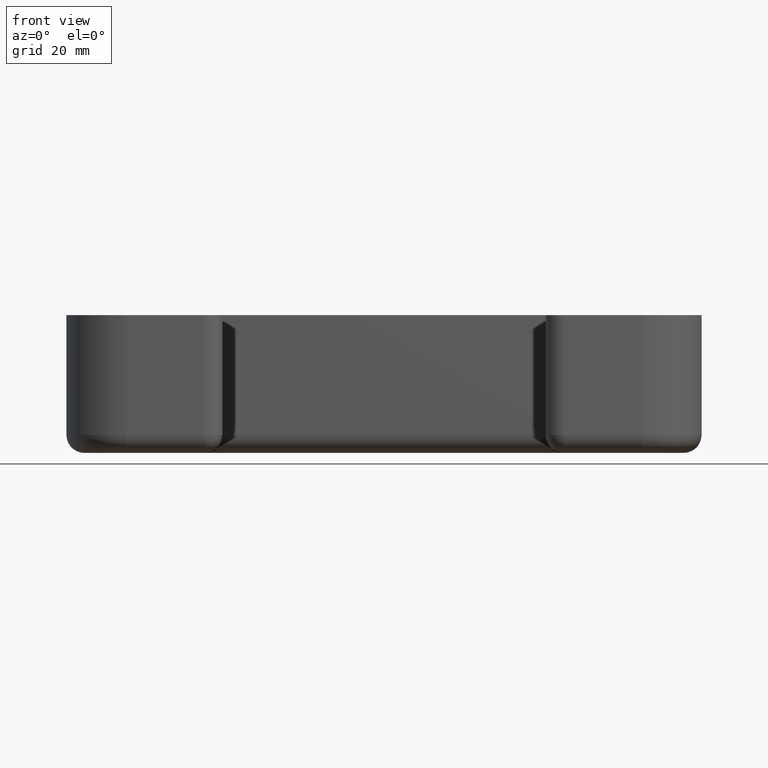
[diagram: clean part render]
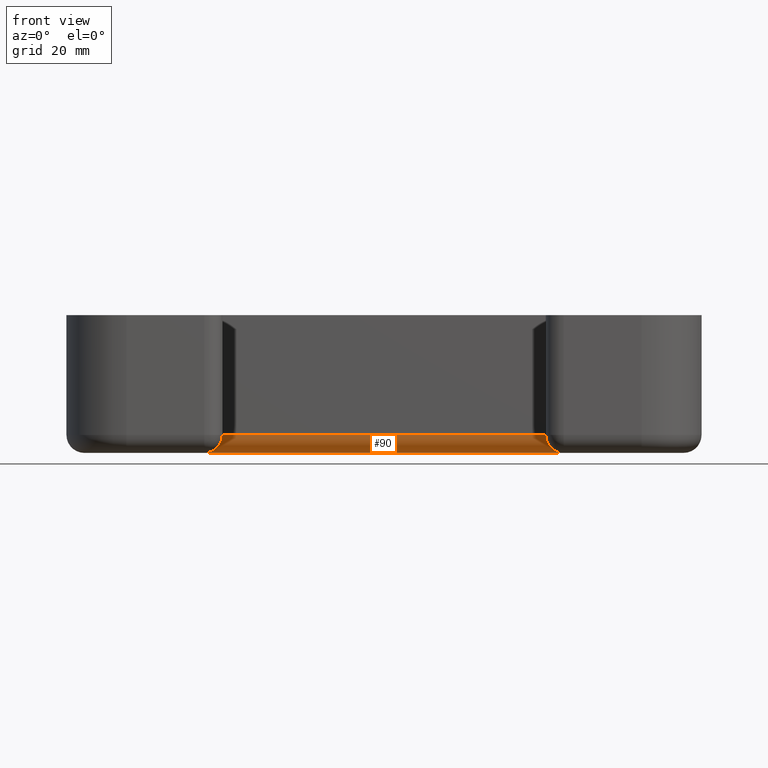
[diagram: same view with one face highlighted and labeled with its STEP entity id]
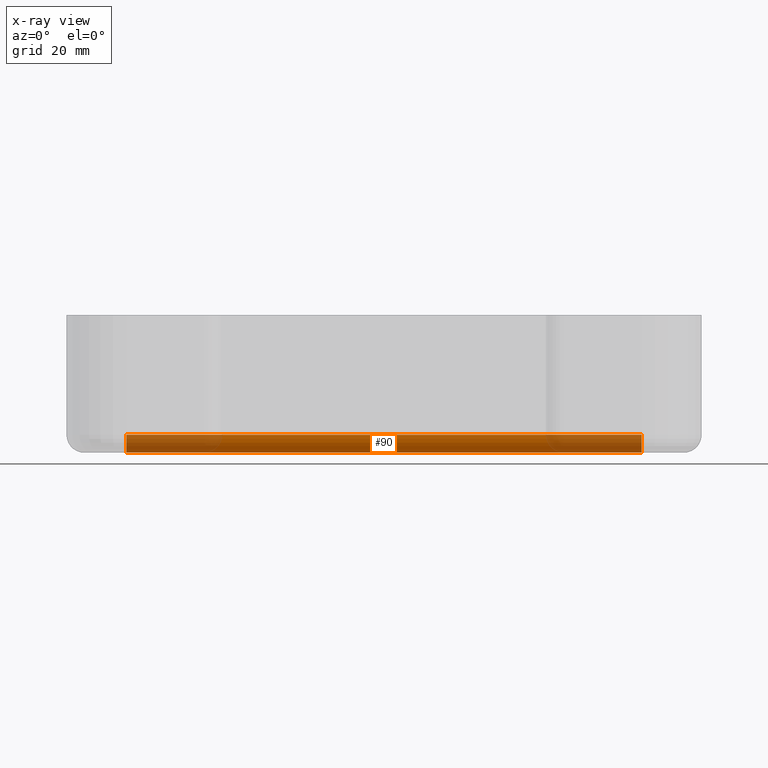
[diagram: x-ray of the same camera — body ghosted, the highlighted face saturated]
A machine part, front view. The second image highlights one B-rep face of the part: STEP entity #90.
The next image is the same camera in x-ray: the body ghosted, the highlighted face saturated — about 36% of this face is hidden behind the body in this view.
In plain terms, the highlighted cylindrical surface (edge-blend (fillet) strip) has radius 3 mm, axis along (1, 0, 0).
Its self-contained STEP definition (entity closure, byte-faithful):
#90 = ADVANCED_FACE( '', ( #178 ), #179, .T. );
#178 = FACE_OUTER_BOUND( '', #321, .T. );
#179 = CYLINDRICAL_SURFACE( '', #322, 3.00000000000000 );
#321 = EDGE_LOOP( '', ( #593, #594, #595, #596 ) );
#322 = AXIS2_PLACEMENT_3D( '', #597, #598, #599 );
#593 = ORIENTED_EDGE( '', *, *, #1091, .T. );
#594 = ORIENTED_EDGE( '', *, *, #1092, .F. );
#595 = ORIENTED_EDGE( '', *, *, #1087, .F. );
#596 = ORIENTED_EDGE( '', *, *, #1093, .F. );
#597 = CARTESIAN_POINT( '', ( -43.0000000000000, 21.8000000000002, -20.0000000000000 ) );
#598 = DIRECTION( '', ( 1.00000000000000, 0.000000000000000, 0.000000000000000 ) );
#599 = DIRECTION( '', ( 0.000000000000000, 0.000000000000000, 1.00000000000000 ) );
#1087 = EDGE_CURVE( '', #1338, #1339, #1340, .T. );
#1091 = EDGE_CURVE( '', #1345, #1346, #1347, .T. );
#1092 = EDGE_CURVE( '', #1339, #1346, #1348, .F. );
#1093 = EDGE_CURVE( '', #1345, #1338, #1349, .T. );
#1338 = VERTEX_POINT( '', #1673 );
#1339 = VERTEX_POINT( '', #1674 );
#1340 = CIRCLE( '', #1675, 3.00000000000000 );
#1345 = VERTEX_POINT( '', #1680 );
#1346 = VERTEX_POINT( '', #1681 );
#1347 = CIRCLE( '', #1682, 3.00000000000000 );
#1348 = LINE( '', #1683, #1684 );
#1349 = LINE( '', #1685, #1686 );
#1673 = CARTESIAN_POINT( '', ( -43.0000000000003, 21.8000000000002, -23.0000000000000 ) );
#1674 = CARTESIAN_POINT( '', ( -43.0000000000003, 18.8000000000002, -20.0000000000000 ) );
#1675 = AXIS2_PLACEMENT_3D( '', #2011, #2012, #2013 );
#1680 = CARTESIAN_POINT( '', ( 42.9999999999997, 21.8000000000002, -23.0000000000000 ) );
#1681 = CARTESIAN_POINT( '', ( 42.9999999999997, 18.8000000000002, -20.0000000000000 ) );
#1682 = AXIS2_PLACEMENT_3D( '', #2023, #2024, #2025 );
#1683 = CARTESIAN_POINT( '', ( 42.9999999999997, 18.8000000000002, -20.0000000000000 ) );
#1684 = VECTOR( '', #2026, 1000.00000000000 );
#1685 = CARTESIAN_POINT( '', ( -43.0000000000000, 21.8000000000002, -23.0000000000000 ) );
#1686 = VECTOR( '', #2027, 1000.00000000000 );
#2011 = CARTESIAN_POINT( '', ( -43.0000000000003, 21.8000000000002, -20.0000000000000 ) );
#2012 = DIRECTION( '', ( -1.00000000000000, 0.000000000000000, 0.000000000000000 ) );
#2013 = DIRECTION( '', ( 0.000000000000000, 0.000000000000000, 1.00000000000000 ) );
#2023 = CARTESIAN_POINT( '', ( 42.9999999999997, 21.8000000000002, -20.0000000000000 ) );
#2024 = DIRECTION( '', ( -1.00000000000000, 0.000000000000000, 0.000000000000000 ) );
#2025 = DIRECTION( '', ( 0.000000000000000, 0.000000000000000, 1.00000000000000 ) );
#2026 = DIRECTION( '', ( -1.00000000000000, 0.000000000000000, 0.000000000000000 ) );
#2027 = DIRECTION( '', ( -1.00000000000000, 0.000000000000000, 0.000000000000000 ) );